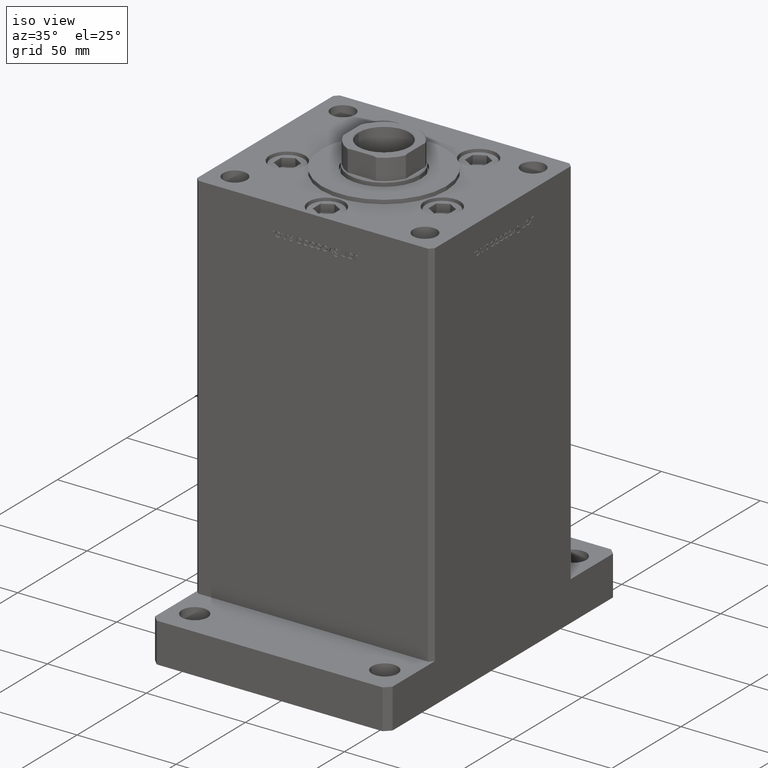
[diagram: clean part render]
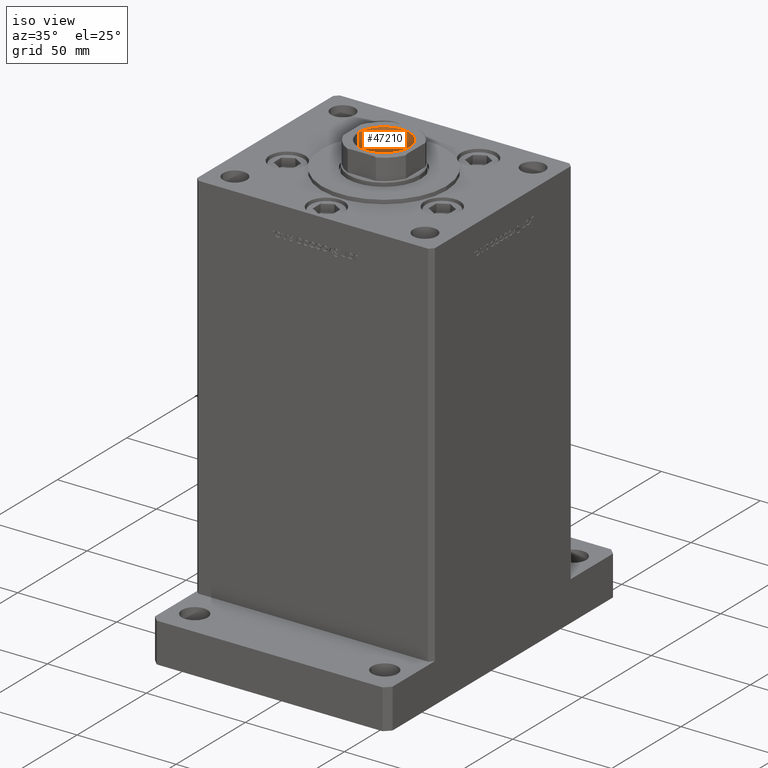
[diagram: same view with one face highlighted and labeled with its STEP entity id]
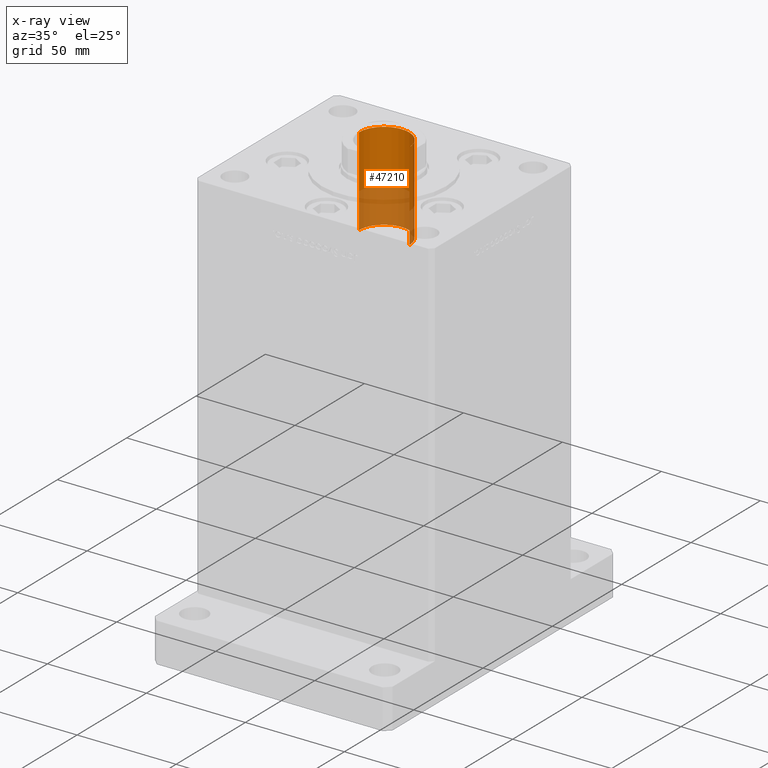
[diagram: x-ray of the same camera — body ghosted, the highlighted face saturated]
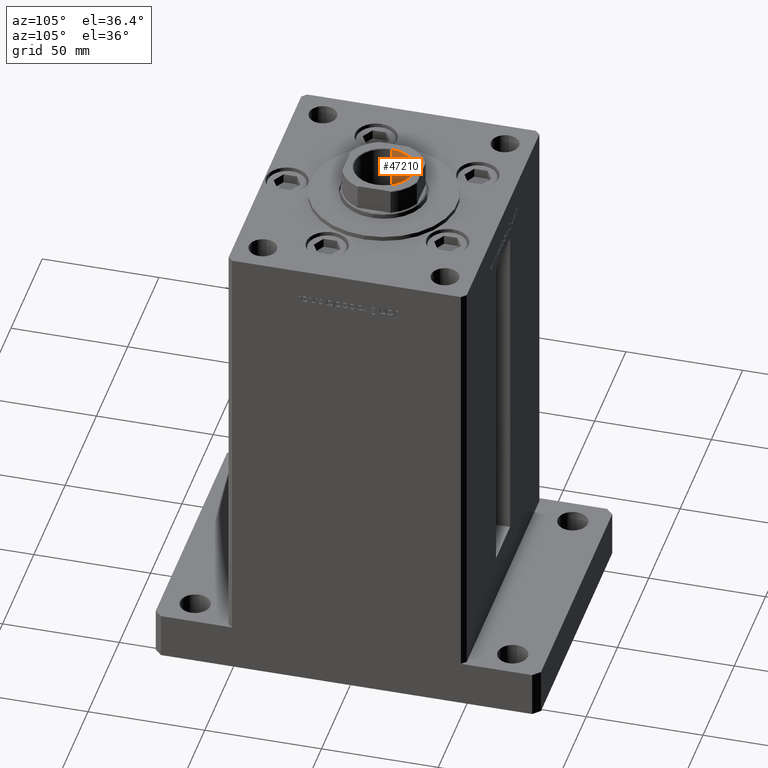
[diagram: same view with one face highlighted and labeled with its STEP entity id]
A machine part, iso view. The second image highlights one B-rep face of the part: STEP entity #47210.
The next image is the same camera in x-ray: the body ghosted, the highlighted face saturated — about 39% of this face is hidden behind the body in this view.
A second angle (auxiliary view) of the same face is appended — the face is thin or edge-on in the first view.
In plain terms, the highlighted cylindrical surface (edge-blend (fillet) strip) has radius 12.75 mm, axis along (0, 0, 1).
Its self-contained STEP definition (entity closure, byte-faithful):
#2269 = CIRCLE ( 'NONE', #23812, 12.74999999999999112 ) ;
#3431 = CARTESIAN_POINT ( 'NONE',  ( -12.74999999999999467, 1.561424668912874519E-15, 168.9499999999999602 ) ) ;
#3986 = CARTESIAN_POINT ( 'NONE',  ( 12.74999999999999467, 0.000000000000000000, 168.9499999999999602 ) ) ;
#4758 = ORIENTED_EDGE ( 'NONE', *, *, #13464, .T. ) ;
#8314 = ORIENTED_EDGE ( 'NONE', *, *, #39493, .T. ) ;
#8445 = DIRECTION ( 'NONE',  ( -0.000000000000000000, -0.000000000000000000, 1.000000000000000000 ) ) ;
#9809 = VERTEX_POINT ( 'NONE', #18479 ) ;
#10922 = DIRECTION ( 'NONE',  ( -0.000000000000000000, -0.000000000000000000, 1.000000000000000000 ) ) ;
#12071 = VECTOR ( 'NONE', #34210, 1000.000000000000000 ) ;
#13464 = EDGE_CURVE ( 'NONE', #49498, #21390, #30644, .T. ) ;
#14513 = LINE ( 'NONE', #18813, #12071 ) ;
#15309 = DIRECTION ( 'NONE',  ( -0.000000000000000000, -0.000000000000000000, 1.000000000000000000 ) ) ;
#15565 = CARTESIAN_POINT ( 'NONE',  ( 0.000000000000000000, 0.000000000000000000, 168.9499999999999602 ) ) ;
#17431 = ORIENTED_EDGE ( 'NONE', *, *, #24610, .F. ) ;
#18479 = CARTESIAN_POINT ( 'NONE',  ( -12.74999999999999112, 1.561424668912874125E-15, 124.2500000000000142 ) ) ;
#18742 = CARTESIAN_POINT ( 'NONE',  ( 12.74999999999999112, 0.000000000000000000, 124.2500000000000142 ) ) ;
#18813 = CARTESIAN_POINT ( 'NONE',  ( -12.74999999999999467, 1.561424668912874519E-15, 169.2500000000000000 ) ) ;
#21390 = VERTEX_POINT ( 'NONE', #3431 ) ;
#23749 = AXIS2_PLACEMENT_3D ( 'NONE', #15565, #32008, #48439 ) ;
#23812 = AXIS2_PLACEMENT_3D ( 'NONE', #44854, #10922, #43804 ) ;
#24610 = EDGE_CURVE ( 'NONE', #45285, #9809, #2269, .T. ) ;
#25898 = CARTESIAN_POINT ( 'NONE',  ( 0.000000000000000000, 0.000000000000000000, 169.2500000000000000 ) ) ;
#28652 = AXIS2_PLACEMENT_3D ( 'NONE', #25898, #8445, #53175 ) ;
#30644 = CIRCLE ( 'NONE', #23749, 12.74999999999999467 ) ;
#32008 = DIRECTION ( 'NONE',  ( 0.000000000000000000, 0.000000000000000000, 1.000000000000000000 ) ) ;
#32271 = LINE ( 'NONE', #44675, #44773 ) ;
#34210 = DIRECTION ( 'NONE',  ( -0.000000000000000000, -0.000000000000000000, 1.000000000000000000 ) ) ;
#39410 = EDGE_CURVE ( 'NONE', #9809, #21390, #14513, .T. ) ;
#39493 = EDGE_CURVE ( 'NONE', #45285, #49498, #32271, .T. ) ;
#41320 = CYLINDRICAL_SURFACE ( 'NONE', #28652, 12.74999999999999467 ) ;
#43476 = EDGE_LOOP ( 'NONE', ( #52469, #17431, #8314, #4758 ) ) ;
#43804 = DIRECTION ( 'NONE',  ( 1.000000000000000000, 0.000000000000000000, 0.000000000000000000 ) ) ;
#44675 = CARTESIAN_POINT ( 'NONE',  ( 12.74999999999999467, 0.000000000000000000, 169.2500000000000000 ) ) ;
#44773 = VECTOR ( 'NONE', #15309, 1000.000000000000000 ) ;
#44854 = CARTESIAN_POINT ( 'NONE',  ( 0.000000000000000000, 0.000000000000000000, 124.2500000000000142 ) ) ;
#45285 = VERTEX_POINT ( 'NONE', #18742 ) ;
#47210 = ADVANCED_FACE ( 'NONE', ( #49408 ), #41320, .F. ) ;
#48439 = DIRECTION ( 'NONE',  ( 1.000000000000000000, 0.000000000000000000, 0.000000000000000000 ) ) ;
#49408 = FACE_OUTER_BOUND ( 'NONE', #43476, .T. ) ;
#49498 = VERTEX_POINT ( 'NONE', #3986 ) ;
#52469 = ORIENTED_EDGE ( 'NONE', *, *, #39410, .F. ) ;
#53175 = DIRECTION ( 'NONE',  ( 1.000000000000000000, 0.000000000000000000, 0.000000000000000000 ) ) ;